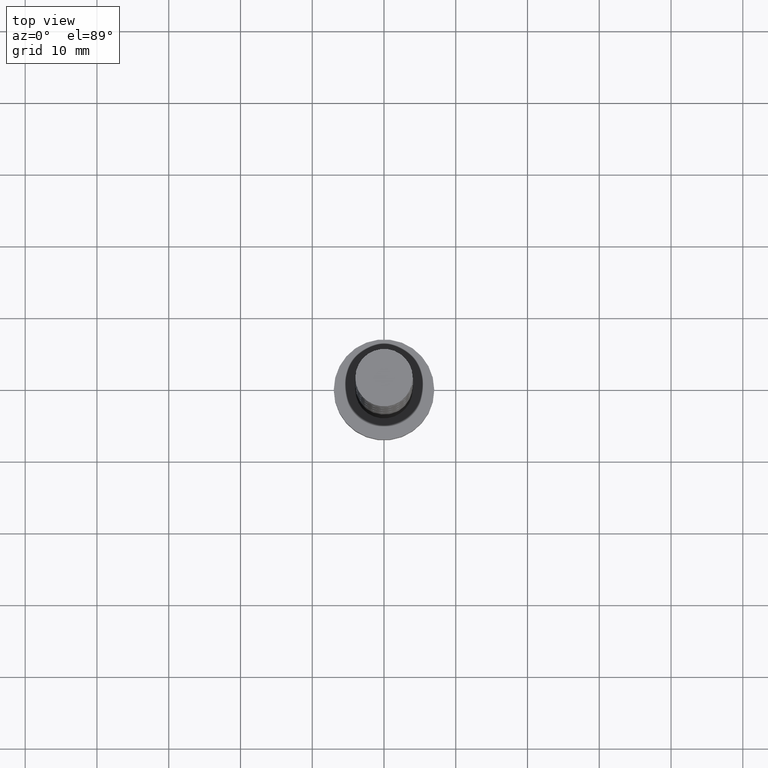
[diagram: clean part render]
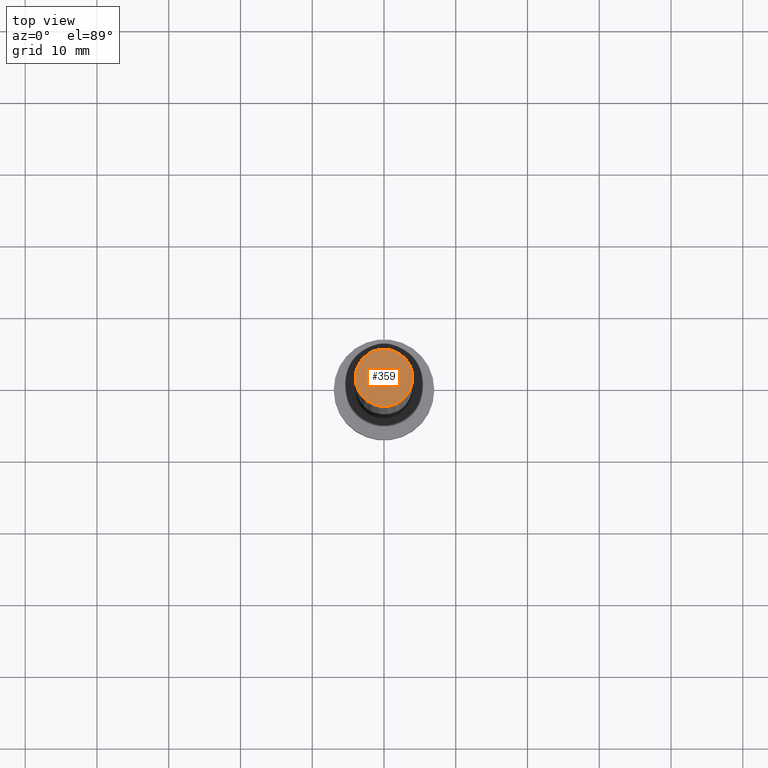
[diagram: same view with one face highlighted and labeled with its STEP entity id]
A machine part, top view. The second image highlights one B-rep face of the part: STEP entity #359.
In plain terms, the highlighted planar face has unit normal (0, 0, 1).
Its self-contained STEP definition (entity closure, byte-faithful):
#9 = CARTESIAN_POINT ( 'NONE',  ( 4.000000000000000000, 4.898587196589412829E-16, 100.0000000000000000 ) ) ;
#84 = CARTESIAN_POINT ( 'NONE',  ( 0.000000000000000000, 0.000000000000000000, 100.0000000000000000 ) ) ;
#93 = CIRCLE ( 'NONE', #1161, 4.000000000000000000 ) ;
#301 = CARTESIAN_POINT ( 'NONE',  ( 0.000000000000000000, 0.000000000000000000, 100.0000000000000000 ) ) ;
#359 = ADVANCED_FACE ( 'NONE', ( #1105 ), #1020, .T. ) ;
#422 = EDGE_LOOP ( 'NONE', ( #986, #531 ) ) ;
#432 = VERTEX_POINT ( 'NONE', #701 ) ;
#446 = DIRECTION ( 'NONE',  ( 1.000000000000000000, 0.000000000000000000, 0.000000000000000000 ) ) ;
#495 = DIRECTION ( 'NONE',  ( 0.000000000000000000, 0.000000000000000000, 1.000000000000000000 ) ) ;
#531 = ORIENTED_EDGE ( 'NONE', *, *, #725, .T. ) ;
#598 = AXIS2_PLACEMENT_3D ( 'NONE', #301, #990, #1446 ) ;
#678 = EDGE_CURVE ( 'NONE', #432, #959, #93, .T. ) ;
#701 = CARTESIAN_POINT ( 'NONE',  ( -4.000000000000000000, 0.000000000000000000, 100.0000000000000000 ) ) ;
#725 = EDGE_CURVE ( 'NONE', #959, #432, #1087, .T. ) ;
#959 = VERTEX_POINT ( 'NONE', #9 ) ;
#986 = ORIENTED_EDGE ( 'NONE', *, *, #678, .T. ) ;
#990 = DIRECTION ( 'NONE',  ( 0.000000000000000000, 0.000000000000000000, 1.000000000000000000 ) ) ;
#1020 = PLANE ( 'NONE',  #598 ) ;
#1087 = CIRCLE ( 'NONE', #1329, 4.000000000000000000 ) ;
#1105 = FACE_OUTER_BOUND ( 'NONE', #422, .T. ) ;
#1161 = AXIS2_PLACEMENT_3D ( 'NONE', #1269, #1246, #446 ) ;
#1246 = DIRECTION ( 'NONE',  ( 0.000000000000000000, 0.000000000000000000, 1.000000000000000000 ) ) ;
#1269 = CARTESIAN_POINT ( 'NONE',  ( 0.000000000000000000, 0.000000000000000000, 100.0000000000000000 ) ) ;
#1329 = AXIS2_PLACEMENT_3D ( 'NONE', #84, #495, #1350 ) ;
#1350 = DIRECTION ( 'NONE',  ( 1.000000000000000000, 0.000000000000000000, 0.000000000000000000 ) ) ;
#1446 = DIRECTION ( 'NONE',  ( 1.000000000000000000, 0.000000000000000000, -0.000000000000000000 ) ) ;